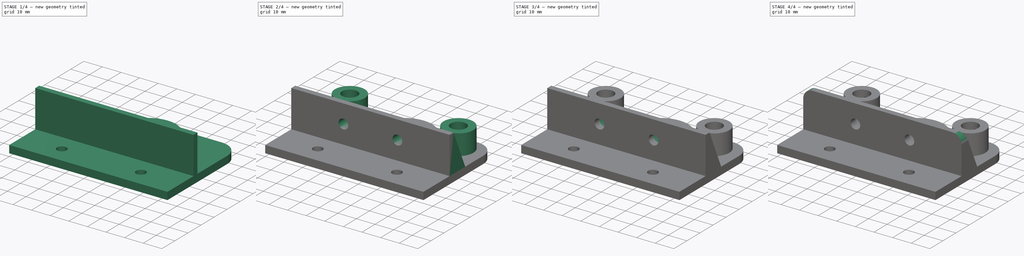
[diagram: build sequence overview — one tinted view per stage of 4, left to right]
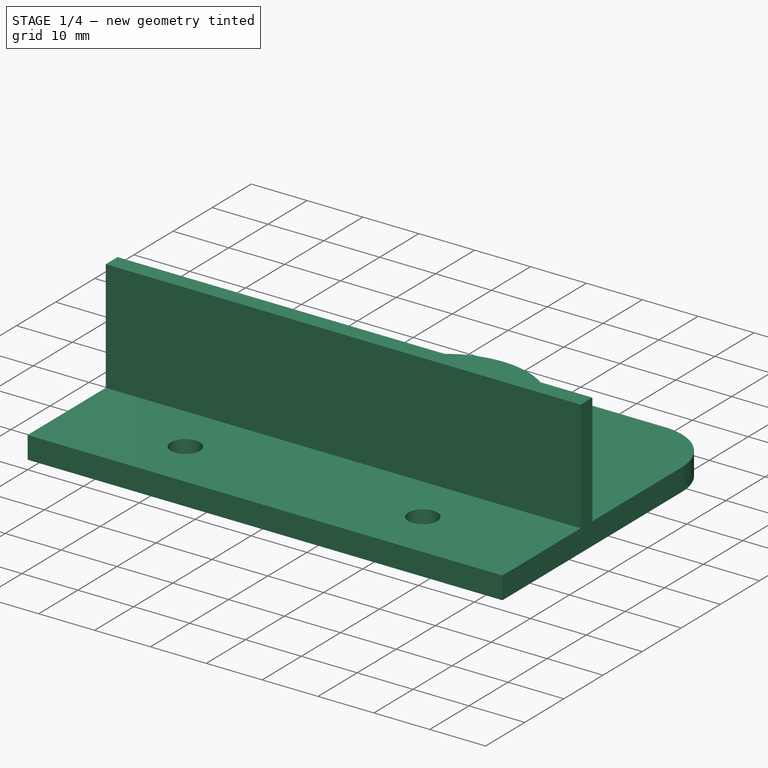
[diagram: stage 1 of 4 — iso view after this stage's code; geometry added in this stage tinted green]
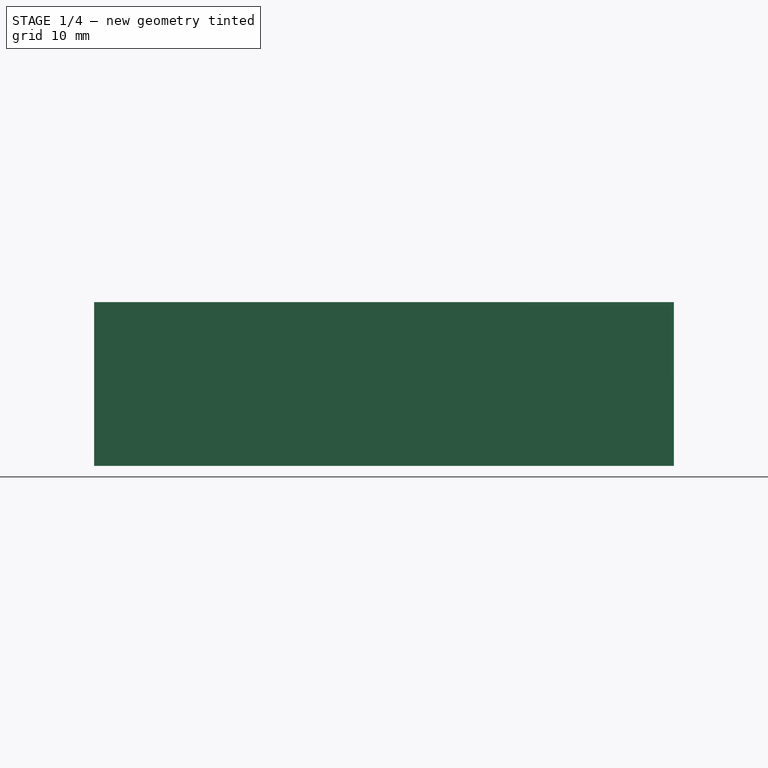
[diagram: stage 1 of 4 — front view after this stage's code; geometry added in this stage tinted green]
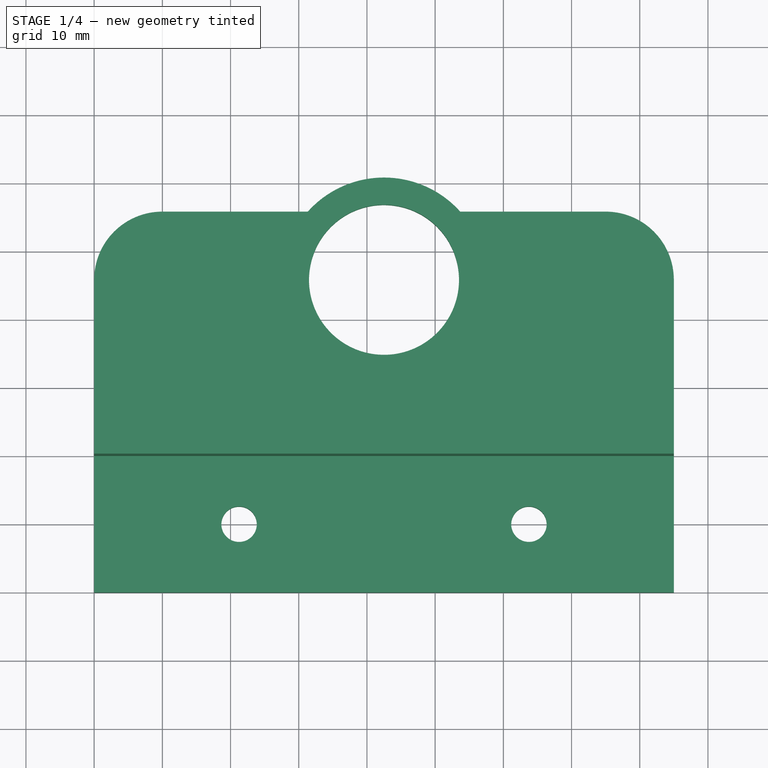
[diagram: stage 1 of 4 — top view after this stage's code; geometry added in this stage tinted green]
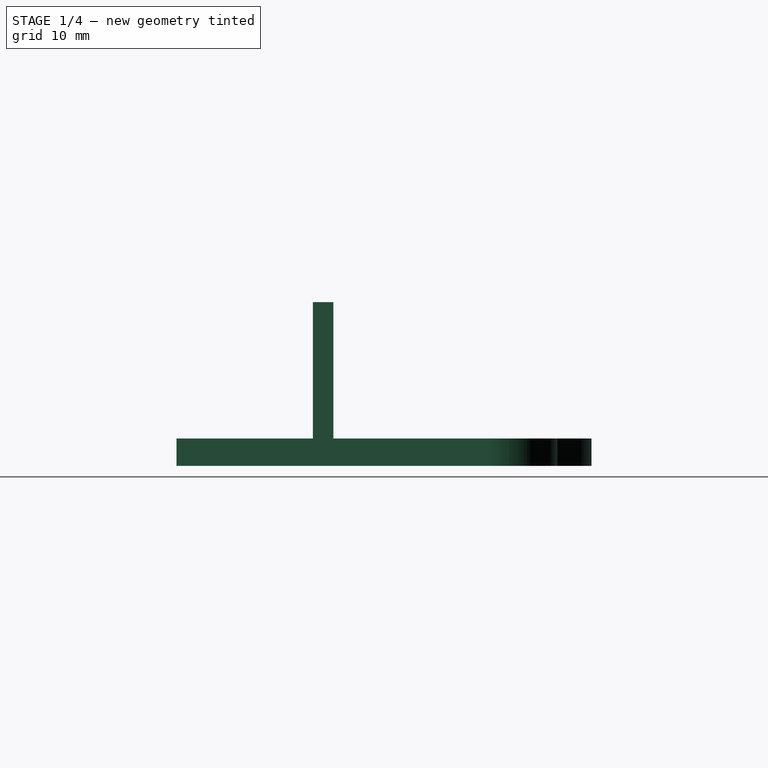
[diagram: stage 1 of 4 — right view after this stage's code; geometry added in this stage tinted green]
FCSTD DOCUMENT  (FreeCAD 1.0R39109 (Git))
Label: top
License: All rights reserved
LicenseURL: https://en.wikipedia.org/wiki/All_rights_reserved
objects: Sketcher::SketchObject×9, PartDesign::Pad×4, PartDesign::Hole×3, PartDesign::SubtractiveLoft×1, PartDesign::Chamfer×1, PartDesign::Pocket×1, PartDesign::Fillet×1, PartDesign::Body×1
note: 52 computed .brp shape members not serialized (recipe doc carries the construction recipe); baked Part::Feature solids carry a one-line shape summary decoded from their .brp

FEATURE [Sketcher::SketchObject] Sketch
  ArcFitTolerance = 1e-06
  AttachmentSupport = -> [XY_Plane]
  FullyConstrained = true
  MakeInternals = false
  MapMode = 5
  sketch-geometry (58):
    g0: LineSegment StartX=0 StartY=0 StartZ=0 EndX=85 EndY=0 EndZ=0
    g1: LineSegment StartX=85 StartY=0 StartZ=0 EndX=85 EndY=20 EndZ=0
    g2: LineSegment [constr] StartX=85 StartY=20 StartZ=0 EndX=0 EndY=20 EndZ=0
    g3: LineSegment StartX=0 StartY=20 StartZ=0 EndX=0 EndY=0 EndZ=0
    g4: LineSegment [constr] StartX=0 StartY=20 StartZ=0 EndX=85 EndY=20 EndZ=0
    g5: LineSegment [constr] StartX=85 StartY=20 StartZ=0 EndX=85 EndY=65 EndZ=0
    g6: LineSegment [constr] StartX=85 StartY=65 StartZ=0 EndX=0 EndY=65 EndZ=0
    g7: LineSegment [constr] StartX=0 StartY=65 StartZ=0 EndX=0 EndY=20 EndZ=0
    g8: LineSegment [constr] StartX=0 StartY=0 StartZ=0 EndX=21.25 EndY=0 EndZ=0
    g9: LineSegment [constr] StartX=21.25 StartY=0 StartZ=0 EndX=21.25 EndY=10 EndZ=0
    g10: LineSegment [constr] StartX=21.25 StartY=10 StartZ=0 EndX=0 EndY=10 EndZ=0
    g11: LineSegment [constr] StartX=0 StartY=10 StartZ=0 EndX=0 EndY=0 EndZ=0
    g12: LineSegment [constr] StartX=85 StartY=0 StartZ=0 EndX=85 EndY=10 EndZ=0
    g13: LineSegment [constr] StartX=85 StartY=10 StartZ=0 EndX=63.75 EndY=10 EndZ=0
    g14: LineSegment [constr] StartX=63.75 StartY=10 StartZ=0 EndX=63.75 EndY=0 EndZ=0
    g15: LineSegment [constr] StartX=63.75 StartY=0 StartZ=0 EndX=85 EndY=0 EndZ=0
    g16: Circle CenterX=21.25 CenterY=10 CenterZ=0 NormalX=0 NormalY=0 NormalZ=1 AngleXU=0 Radius=2.6
    g17: Circle CenterX=63.75 CenterY=10 CenterZ=0 NormalX=0 NormalY=0 NormalZ=1 AngleXU=0 Radius=2.6
    g18: LineSegment [constr] StartX=0 StartY=20 StartZ=0 EndX=85 EndY=20 EndZ=0
    g19: LineSegment StartX=85 StartY=20 StartZ=0 EndX=85 EndY=23 EndZ=0
    g20: LineSegment [constr] StartX=85 StartY=23 StartZ=0 EndX=0 EndY=23 EndZ=0
    g21: LineSegment StartX=0 StartY=23 StartZ=0 EndX=0 EndY=20 EndZ=0
    g22: LineSegment [constr] StartX=42.5 StartY=0 StartZ=0 EndX=42.5 EndY=65 EndZ=0
    g23: LineSegment [constr] StartX=0 StartY=20 StartZ=0 EndX=85 EndY=20 EndZ=0
    g24: LineSegment [constr] StartX=85 StartY=0 StartZ=0 EndX=85 EndY=20 EndZ=0
    g25: LineSegment [constr] StartX=85 StartY=20 StartZ=0 EndX=42.5 EndY=20 EndZ=0
    g26: LineSegment [constr] StartX=42.5 StartY=20 StartZ=0 EndX=42.5 EndY=0 EndZ=0
    g27: LineSegment [constr] StartX=42.5 StartY=0 StartZ=0 EndX=85 EndY=0 EndZ=0
    g28: LineSegment [constr] StartX=42.5 StartY=20 StartZ=0 EndX=71.65 EndY=20 EndZ=0
    g29: LineSegment [constr] StartX=71.65 StartY=20 StartZ=0 EndX=71.65 EndY=45.84 EndZ=0
    g30: LineSegment [constr] StartX=71.65 StartY=45.84 StartZ=0 EndX=42.5 EndY=45.84 EndZ=0
    g31: LineSegment [constr] StartX=42.5 StartY=45.84 StartZ=0 EndX=42.5 EndY=20 EndZ=0
    g32: LineSegment [constr] StartX=42.5 StartY=20 StartZ=0 EndX=42.5 EndY=45.84 EndZ=0
    g33: LineSegment [constr] StartX=42.5 StartY=45.84 StartZ=0 EndX=13.35 EndY=45.84 EndZ=0
    g34: LineSegment [constr] StartX=13.35 StartY=45.84 StartZ=0 EndX=13.35 EndY=20 EndZ=0
    g35: LineSegment [constr] StartX=13.35 StartY=20 StartZ=0 EndX=42.5 EndY=20 EndZ=0
    g36: Circle [constr] CenterX=13.35 CenterY=45.84 CenterZ=0 NormalX=0 NormalY=0 NormalZ=1 AngleXU=0 Radius=4.05
    g37: Circle [constr] CenterX=71.65 CenterY=45.84 CenterZ=0 NormalX=0 NormalY=0 NormalZ=1 AngleXU=0 Radius=4.05
    g38: Circle CenterX=42.5 CenterY=45.84 CenterZ=0 NormalX=0 NormalY=0 NormalZ=1 AngleXU=0 Radius=11
    g39: Circle [constr] CenterX=42.5 CenterY=45.84 CenterZ=0 NormalX=0 NormalY=0 NormalZ=1 AngleXU=0 Radius=15
    g40: LineSegment [constr] StartX=13.35 StartY=45.84 StartZ=0 EndX=13.35 EndY=55.84 EndZ=0
    g41: LineSegment [constr] StartX=13.35 StartY=55.84 StartZ=0 EndX=0 EndY=55.84 EndZ=0
    g42: LineSegment [constr] StartX=0 StartY=55.84 StartZ=0 EndX=0 EndY=45.84 EndZ=0
    g43: LineSegment [constr] StartX=0 StartY=45.84 StartZ=0 EndX=13.35 EndY=45.84 EndZ=0
    g44: LineSegment [constr] StartX=71.65 StartY=45.84 StartZ=0 EndX=85 EndY=45.84 EndZ=0
    g45: LineSegment [constr] StartX=85 StartY=45.84 StartZ=0 EndX=85 EndY=55.84 EndZ=0
    g46: LineSegment [constr] StartX=85 StartY=55.84 StartZ=0 EndX=71.65 EndY=55.84 EndZ=0
    g47: LineSegment [constr] StartX=71.65 StartY=55.84 StartZ=0 EndX=71.65 EndY=45.84 EndZ=0
    g48: LineSegment StartX=10 StartY=55.84 StartZ=0 EndX=31.3197 EndY=55.84 EndZ=0
    g49: LineSegment StartX=75 StartY=55.84 StartZ=0 EndX=53.6803 EndY=55.84 EndZ=0
    g50: LineSegment [constr] StartX=42.5 StartY=45.84 StartZ=0 EndX=42.5 EndY=60.84 EndZ=0
    g51: ArcOfCircle CenterX=42.5 CenterY=45.84 CenterZ=0 NormalX=0 NormalY=0 NormalZ=1 AngleXU=0 Radius=15 StartAngle=0.729728 EndAngle=2.41186
    g52: LineSegment StartX=0 StartY=23 StartZ=0 EndX=0 EndY=45.84 EndZ=0
    g53: LineSegment StartX=85 StartY=45.84 StartZ=0 EndX=85 EndY=23 EndZ=0
    g54: ArcOfCircle CenterX=75 CenterY=45.84 CenterZ=0 NormalX=0 NormalY=0 NormalZ=1 AngleXU=0 Radius=10 StartAngle=6.71248e-11 EndAngle=1.5708
    g55: GeomPoint [constr] X=85 Y=55.84 Z=0
    g56: ArcOfCircle CenterX=10 CenterY=45.84 CenterZ=0 NormalX=0 NormalY=0 NormalZ=1 AngleXU=0 Radius=10 StartAngle=1.5708 EndAngle=3.14159
    g57: GeomPoint [constr] X=0 Y=55.84 Z=0
  constraints (150):
    c: Coincident(g0,g1)
    c: Coincident(g1,g2)
    c: Coincident(g2,g3)
    c: Coincident(g3,g0)
    c: Horizontal(g0)
    c: Horizontal(g2)
    c: Vertical(g1)
    c: Vertical(g3)
    c: Distance(g1,g3) = 85
    c: Distance(g0,g2) = 20
    c: Coincident(g0,g-1)
    c: Coincident(g4,g5)
    c: Coincident(g5,g6)
    c: Coincident(g6,g7)
    c: Coincident(g7,g4)
    c: Horizontal(g4)
    c: Horizontal(g6)
    c: Vertical(g5)
    c: Vertical(g7)
    c: Distance(g5,g7) = 85
    c: Distance(g4,g6) = 45
    c: Coincident(g4,g2)
    c: Coincident(g8,g9)
    c: Coincident(g9,g10)
    c: Coincident(g10,g11)
    c: Coincident(g11,g8)
    c: Horizontal(g8)
    c: Horizontal(g10)
    c: Vertical(g9)
    c: Vertical(g11)
    c: Distance(g9,g11) = 21.25
    c: Distance(g8,g10) = 10
    c: Coincident(g8,g0)
    c: Coincident(g12,g13)
    c: Coincident(g13,g14)
    c: Coincident(g14,g15)
    c: Coincident(g15,g12)
    c: Vertical(g12)
    c: Vertical(g14)
    c: Horizontal(g13)
    c: Horizontal(g15)
    c: Distance(g12,g14) = 21.25
    c: Distance(g13,g15) = 10
    c: Coincident(g12,g0)
    c: Diameter(g16) = 5.2
    c: Coincident(g16,g9)
    c: Diameter(g17) = 5.2
    c: Coincident(g17,g13)
    c: Coincident(g18,g19)
    c: Coincident(g19,g20)
    c: Coincident(g20,g21)
    c: Coincident(g21,g18)
    c: Horizontal(g18)
    c: Horizontal(g20)
    c: Vertical(g19)
    c: Vertical(g21)
    c: Distance(g18,g20) = 3
    c: Coincident(g18,g2)
    c: PointOnObject(g19,g5)
    c: Symmetric(g0,g0,g22)
    c: Symmetric(g6,g6,g22)
    c: Coincident(g23,g2)
    c: Coincident(g23,g1)
    c: Coincident(g24,g25)
    c: Coincident(g25,g26)
    c: Coincident(g26,g27)
    c: Coincident(g27,g24)
    c: Vertical(g24)
    c: Vertical(g26)
    c: Horizontal(g25)
    c: Horizontal(g27)
    c: Distance(g25,g27) = 20
    c: Coincident(g24,g0)
    c: PointOnObject(g25,g22)
    c: Coincident(g28,g29)
    c: Coincident(g29,g30)
    c: Coincident(g30,g31)
    c: Coincident(g31,g28)
    c: Horizontal(g28)
    c: Horizontal(g30)
    c: Vertical(g29)
    c: Vertical(g31)
    c: Distance(g29,g31) = 29.15
    c: Distance(g28,g30) = 25.84
    c: Coincident(g28,g25)
    c: Coincident(g32,g33)
    c: Coincident(g33,g34)
    c: Coincident(g34,g35)
    c: Coincident(g35,g32)
    c: Vertical(g32)
    c: Vertical(g34)
    c: Horizontal(g33)
    c: Horizontal(g35)
    c: Distance(g32,g34) = 29.15
    c: Distance(g33,g35) = 25.84
    c: Coincident(g32,g25)
    c: Diameter(g36) = 8.1
    c: Coincident(g36,g33)
    c: Diameter(g37) = 8.1
    c: Coincident(g37,g29)
    c: Diameter(g38) = 22
    c: Coincident(g38,g30)
    c: Diameter(g39) = 30
    c: Coincident(g39,g30)
    c: Coincident(g40,g41)
    c: Coincident(g41,g42)
    c: Coincident(g42,g43)
    c: Coincident(g43,g40)
    c: Vertical(g40)
    c: Vertical(g42)
    c: Horizontal(g41)
    c: Horizontal(g43)
    c: Distance(g41,g43) = 10
    c: Coincident(g40,g33)
    c: PointOnObject(g41,g7)
    c: Coincident(g44,g45)
    c: Coincident(g45,g46)
    c: Coincident(g46,g47)
    c: Coincident(g47,g44)
    c: Horizontal(g44)
    c: Horizontal(g46)
    c: Vertical(g45)
    c: Vertical(g47)
    c: Distance(g44,g46) = 10
    c: Coincident(g44,g29)
    c: PointOnObject(g45,g5)
    c: Coincident(g57,g41)
    c: PointOnObject(g48,g39)
    c: Horizontal(g48)
    c: Coincident(g55,g45)
    c: PointOnObject(g49,g39)
    c: Horizontal(g49)
    c: Distance(g50) = 15
    c: Coincident(g50,g30)
    c: PointOnObject(g50,g22)
    c: Coincident(g51,g48)
    c: Coincident(g51,g49)
    c: PointOnObject(g50,g51)
    c: Coincident(g52,g20)
    c: Coincident(g53,g19)
    c: PointOnObject(g55,g49)
    c: PointOnObject(g55,g53)
    c: Tangent(g49,g54) = -1.5708
    c: Tangent(g53,g54) = 1.5708
    c: DistanceY(g54,g49) = 10
    c: PointOnObject(g57,g48)
    c: PointOnObject(g57,g52)
    c: Tangent(g48,g56) = 1.5708
    c: Tangent(g52,g56) = 1.5708
    c: DistanceY(g56,g48) = 10
FEATURE [PartDesign::Pad] Pad
  Direction = (0,0,1)
  Length = 4
  Length2 = 10
  Profile = -> Sketch
  ReferenceAxis = -> Sketch [N_Axis]
  Refine = true
  Reversed = true
  Suppressed = false
  Type = 0
FEATURE [Sketcher::SketchObject] Sketch001
  ArcFitTolerance = 1e-06
  AttachmentSupport = -> [XY_Plane]
  FullyConstrained = true
  MakeInternals = false
  MapMode = 5
  sketch-geometry (8):
    g0: LineSegment [constr] StartX=0 StartY=0 StartZ=0 EndX=85 EndY=0 EndZ=0
    g1: LineSegment [constr] StartX=85 StartY=0 StartZ=0 EndX=85 EndY=20 EndZ=0
    g2: LineSegment [constr] StartX=85 StartY=20 StartZ=0 EndX=0 EndY=20 EndZ=0
    g3: LineSegment [constr] StartX=0 StartY=20 StartZ=0 EndX=0 EndY=0 EndZ=0
    g4: LineSegment StartX=0 StartY=20 StartZ=0 EndX=85 EndY=20 EndZ=0
    g5: LineSegment StartX=85 StartY=20 StartZ=0 EndX=85 EndY=23 EndZ=0
    g6: LineSegment StartX=85 StartY=23 StartZ=0 EndX=0 EndY=23 EndZ=0
    g7: LineSegment StartX=0 StartY=23 StartZ=0 EndX=0 EndY=20 EndZ=0
  constraints (22):
    c: Coincident(g0,g1)
    c: Coincident(g1,g2)
    c: Coincident(g2,g3)
    c: Coincident(g3,g0)
    c: Horizontal(g0)
    c: Horizontal(g2)
    c: Vertical(g1)
    c: Vertical(g3)
    c: Distance(g1,g3) = 85
    c: Distance(g0,g2) = 20
    c: Coincident(g0,g-1)
    c: Coincident(g4,g5)
    c: Coincident(g5,g6)
    c: Coincident(g6,g7)
    c: Coincident(g7,g4)
    c: Horizontal(g4)
    c: Horizontal(g6)
    c: Vertical(g5)
    c: Vertical(g7)
    c: Distance(g5,g7) = 85
    c: Distance(g4,g6) = 3
    c: Coincident(g4,g2)
FEATURE [PartDesign::Pad] Pad001
  BaseFeature = -> Pad
  Direction = (0,0,1)
  Length = 20
  Length2 = 10
  Profile = -> Sketch001
  ReferenceAxis = -> Sketch001 [N_Axis]
  Refine = true
  Suppressed = false
  Type = 0
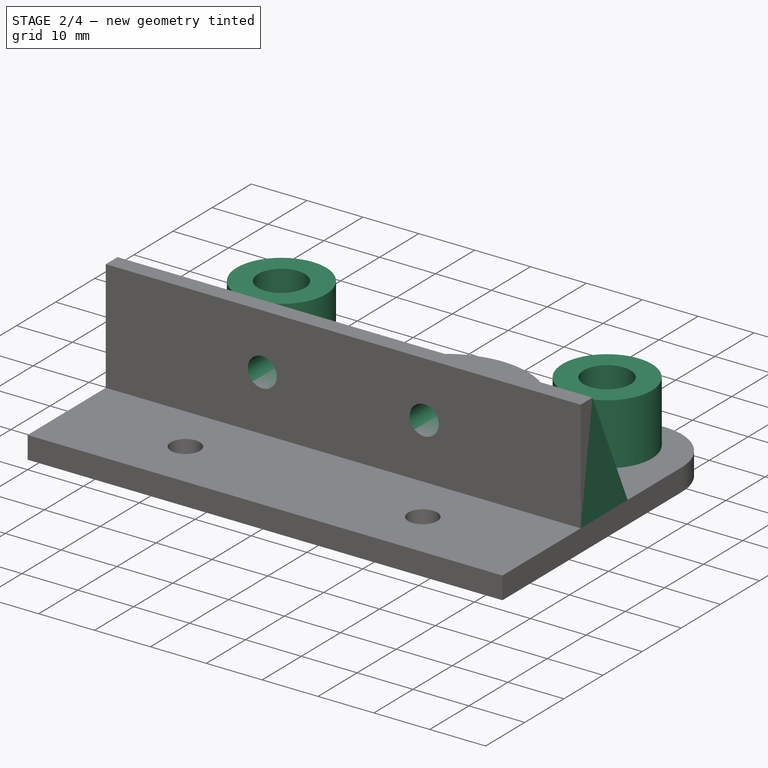
[diagram: stage 2 of 4 — iso view after this stage's code; geometry added in this stage tinted green]
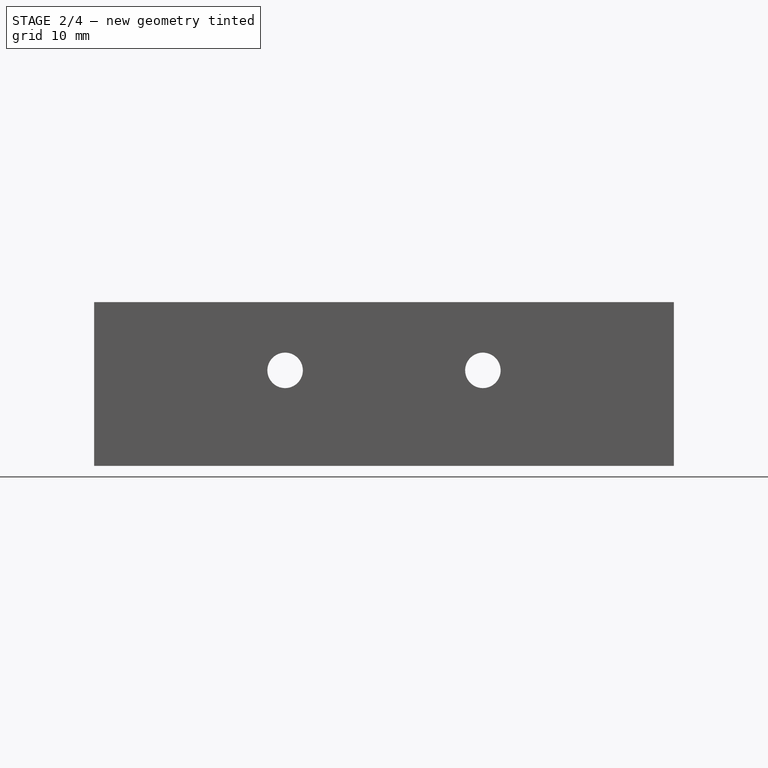
[diagram: stage 2 of 4 — front view after this stage's code; geometry added in this stage tinted green]
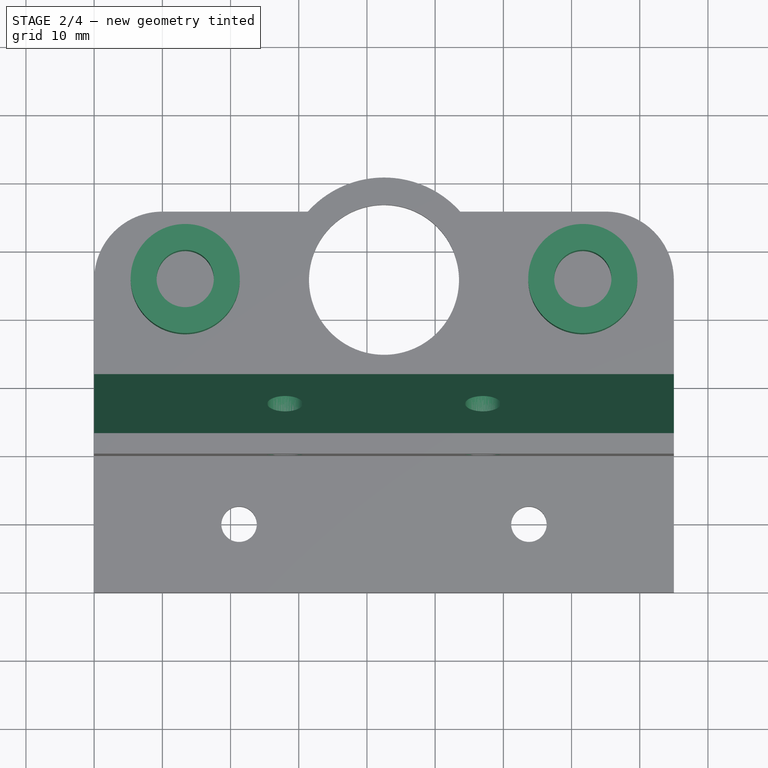
[diagram: stage 2 of 4 — top view after this stage's code; geometry added in this stage tinted green]
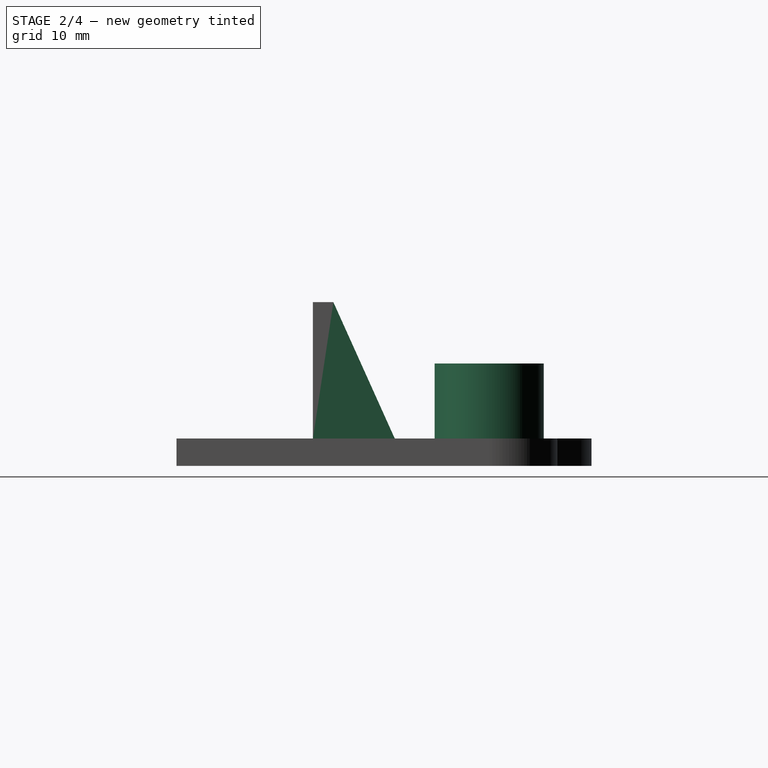
[diagram: stage 2 of 4 — right view after this stage's code; geometry added in this stage tinted green]
FEATURE [Sketcher::SketchObject] Sketch002
  ArcFitTolerance = 1e-06
  AttachmentSupport = -> [XY_Plane]
  FullyConstrained = true
  MakeInternals = false
  MapMode = 5
  sketch-geometry (22):
    g0: LineSegment [constr] StartX=0 StartY=0 StartZ=0 EndX=85 EndY=0 EndZ=0
    g1: LineSegment [constr] StartX=85 StartY=0 StartZ=0 EndX=85 EndY=20 EndZ=0
    g2: LineSegment [constr] StartX=85 StartY=20 StartZ=0 EndX=0 EndY=20 EndZ=0
    g3: LineSegment [constr] StartX=0 StartY=20 StartZ=0 EndX=0 EndY=0 EndZ=0
    g4: LineSegment [constr] StartX=0 StartY=20 StartZ=0 EndX=85 EndY=20 EndZ=0
    g5: LineSegment [constr] StartX=85 StartY=20 StartZ=0 EndX=85 EndY=23 EndZ=0
    g6: LineSegment [constr] StartX=85 StartY=23 StartZ=0 EndX=0 EndY=23 EndZ=0
    g7: LineSegment [constr] StartX=0 StartY=23 StartZ=0 EndX=0 EndY=20 EndZ=0
    g8: LineSegment [constr] StartX=0 StartY=23 StartZ=0 EndX=13.35 EndY=23 EndZ=0
    g9: LineSegment [constr] StartX=13.35 StartY=23 StartZ=0 EndX=13.35 EndY=45.84 EndZ=0
    g10: LineSegment [constr] StartX=13.35 StartY=45.84 StartZ=0 EndX=0 EndY=45.84 EndZ=0
    g11: LineSegment [constr] StartX=0 StartY=45.84 StartZ=0 EndX=0 EndY=23 EndZ=0
    g12: LineSegment [constr] StartX=85 StartY=23 StartZ=0 EndX=85 EndY=45.84 EndZ=0
    g13: LineSegment [constr] StartX=71.65 StartY=23 StartZ=0 EndX=85 EndY=23 EndZ=0
    g14: Circle CenterX=13.35 CenterY=45.84 CenterZ=0 NormalX=0 NormalY=0 NormalZ=1 AngleXU=0 Radius=4.2
    g15: Circle CenterX=13.35 CenterY=45.84 CenterZ=0 NormalX=0 NormalY=0 NormalZ=1 AngleXU=0 Radius=8
    g16: LineSegment [constr] StartX=85 StartY=23 StartZ=0 EndX=85 EndY=45.84 EndZ=0
    g17: LineSegment [constr] StartX=85 StartY=45.84 StartZ=0 EndX=71.65 EndY=45.84 EndZ=0
    g18: LineSegment [constr] StartX=71.65 StartY=45.84 StartZ=0 EndX=71.65 EndY=23 EndZ=0
    g19: LineSegment [constr] StartX=71.65 StartY=23 StartZ=0 EndX=85 EndY=23 EndZ=0
    g20: Circle CenterX=71.65 CenterY=45.84 CenterZ=0 NormalX=0 NormalY=0 NormalZ=1 AngleXU=0 Radius=4.2
    g21: Circle CenterX=71.65 CenterY=45.84 CenterZ=0 NormalX=0 NormalY=0 NormalZ=1 AngleXU=0 Radius=8
  constraints (58):
    c: Coincident(g0,g1)
    c: Coincident(g1,g2)
    c: Coincident(g2,g3)
    c: Coincident(g3,g0)
    c: Horizontal(g0)
    c: Horizontal(g2)
    c: Vertical(g1)
    c: Vertical(g3)
    c: Distance(g1,g3) = 85
    c: Distance(g0,g2) = 20
    c: Coincident(g0,g-1)
    c: Coincident(g4,g5)
    c: Coincident(g5,g6)
    c: Coincident(g6,g7)
    c: Coincident(g7,g4)
    c: Horizontal(g4)
    c: Horizontal(g6)
    c: Vertical(g5)
    c: Vertical(g7)
    c: Distance(g5,g7) = 85
    c: Distance(g4,g6) = 3
    c: Coincident(g4,g2)
    c: Coincident(g8,g9)
    c: Coincident(g9,g10)
    c: Coincident(g10,g11)
    c: Coincident(g11,g8)
    c: Horizontal(g8)
    c: Horizontal(g10)
    c: Vertical(g9)
    c: Vertical(g11)
    c: Distance(g9,g11) = 13.35
    c: Distance(g8,g10) = 22.84
    c: Coincident(g8,g6)
    c: Coincident(g13,g12)
    c: Vertical(g12)
    c: Horizontal(g13)
    c: Distance(g12,g13) = 13.35
    c: Distance(g12,g13) = 22.84
    c: Coincident(g12,g5)
    c: Diameter(g14) = 8.4
    c: Coincident(g14,g9)
    c: Diameter(g15) = 16
    c: Coincident(g15,g9)
    c: Coincident(g16,g17)
    c: Coincident(g17,g18)
    c: Coincident(g18,g19)
    c: Coincident(g19,g16)
    c: Vertical(g16)
    c: Vertical(g18)
    c: Horizontal(g17)
    c: Horizontal(g19)
    c: Distance(g16,g18) = 13.35
    c: Distance(g17,g19) = 22.84
    c: Coincident(g16,g5)
    c: Diameter(g20) = 8.4
    c: Coincident(g20,g17)
    c: Diameter(g21) = 16
    c: Coincident(g21,g17)
FEATURE [PartDesign::Pad] Pad002
  BaseFeature = -> Pad001
  Direction = (0,0,1)
  Length = 11
  Length2 = 10
  Profile = -> Sketch002
  ReferenceAxis = -> Sketch002 [N_Axis]
  Refine = true
  Suppressed = false
  Type = 0
FEATURE [Sketcher::SketchObject] Sketch003
  ArcFitTolerance = 1e-06
  AttachmentSupport = -> [XZ_Plane]
  FullyConstrained = true
  MakeInternals = false
  MapMode = 5
  Placement = pos=(0,0,0) rot=(1,0,0;1.5708rad)
  sketch-geometry (14):
    g0: LineSegment [constr] StartX=0 StartY=0 StartZ=0 EndX=85 EndY=0 EndZ=0
    g1: LineSegment [constr] StartX=85 StartY=0 StartZ=0 EndX=85 EndY=20 EndZ=0
    g2: LineSegment [constr] StartX=85 StartY=20 StartZ=0 EndX=0 EndY=20 EndZ=0
    g3: LineSegment [constr] StartX=0 StartY=20 StartZ=0 EndX=0 EndY=0 EndZ=0
    g4: LineSegment [constr] StartX=0 StartY=0 StartZ=0 EndX=21.25 EndY=0 EndZ=0
    g5: LineSegment [constr] StartX=21.25 StartY=0 StartZ=0 EndX=21.25 EndY=10 EndZ=0
    g6: LineSegment [constr] StartX=21.25 StartY=10 StartZ=0 EndX=0 EndY=10 EndZ=0
    g7: LineSegment [constr] StartX=0 StartY=10 StartZ=0 EndX=0 EndY=0 EndZ=0
    g8: LineSegment [constr] StartX=85 StartY=0 StartZ=0 EndX=85 EndY=10 EndZ=0
    g9: LineSegment [constr] StartX=85 StartY=10 StartZ=0 EndX=63.75 EndY=10 EndZ=0
    g10: LineSegment [constr] StartX=63.75 StartY=10 StartZ=0 EndX=63.75 EndY=0 EndZ=0
    g11: LineSegment [constr] StartX=63.75 StartY=0 StartZ=0 EndX=85 EndY=0 EndZ=0
    g12: Circle CenterX=21.25 CenterY=10 CenterZ=0 NormalX=0 NormalY=0 NormalZ=1 AngleXU=0 Radius=2.6
    g13: Circle CenterX=63.75 CenterY=10 CenterZ=0 NormalX=0 NormalY=0 NormalZ=1 AngleXU=0 Radius=2.6
  constraints (37):
    c: Coincident(g0,g1)
    c: Coincident(g1,g2)
    c: Coincident(g2,g3)
    c: Coincident(g3,g0)
    c: Horizontal(g0)
    c: Horizontal(g2)
    c: Vertical(g1)
    c: Vertical(g3)
    c: Distance(g1,g3) = 85
    c: Distance(g0,g2) = 20
    c: Coincident(g0,g-1)
    c: Coincident(g4,g5)
    c: Coincident(g5,g6)
    c: Coincident(g6,g7)
    c: Coincident(g7,g4)
    c: Horizontal(g4)
    c: Horizontal(g6)
    c: Vertical(g5)
    c: Vertical(g7)
    c: Distance(g5,g7) = 21.25
    c: Distance(g4,g6) = 10
    c: Coincident(g4,g0)
    c: Coincident(g8,g9)
    c: Coincident(g9,g10)
    c: Coincident(g10,g11)
    c: Coincident(g11,g8)
    c: Vertical(g8)
    c: Vertical(g10)
    c: Horizontal(g9)
    c: Horizontal(g11)
    c: Distance(g8,g10) = 21.25
    c: Distance(g9,g11) = 10
    c: Coincident(g8,g0)
    c: Diameter(g12) = 5.2
    c: Coincident(g12,g5)
    c: Diameter(g13) = 5.2
    c: Coincident(g13,g9)
FEATURE [PartDesign::SubtractiveLoft] SubtractiveLoft
  BaseFeature = -> Pad002
  Closed = false
  Profile = -> Sketch003
  Refine = true
  Ruled = false
  Suppressed = false
FEATURE [PartDesign::Chamfer] Chamfer
  Angle = 45
  Base = -> Pad002 [Edge2]
  BaseFeature = -> Pad002
  ChamferType = 1
  FlipDirection = false
  Refine = true
  Size = 9
  Size2 = 19.99
  SupportTransform = false
  Suppressed = false
  UseAllEdges = false
FEATURE [Sketcher::SketchObject] Sketch004
  ArcFitTolerance = 1e-06
  AttachmentSupport = -> [Chamfer]
  FullyConstrained = true
  MakeInternals = false
  MapMode = 5
  Placement = pos=(0,20,0) rot=(1,0,0;1.5708rad)
  sketch-geometry (16):
    g0: LineSegment [constr] StartX=0 StartY=0 StartZ=0 EndX=85 EndY=0 EndZ=0
    g1: LineSegment [constr] StartX=85 StartY=0 StartZ=0 EndX=85 EndY=20 EndZ=0
    g2: LineSegment [constr] StartX=85 StartY=20 StartZ=0 EndX=0 EndY=20 EndZ=0
    g3: LineSegment [constr] StartX=0 StartY=20 StartZ=0 EndX=0 EndY=0 EndZ=0
    g4: LineSegment [constr] StartX=0 StartY=0 StartZ=0 EndX=28 EndY=0 EndZ=0
    g5: LineSegment [constr] StartX=28 StartY=0 StartZ=0 EndX=28 EndY=10 EndZ=0
    g6: LineSegment [constr] StartX=28 StartY=10 StartZ=0 EndX=0 EndY=10 EndZ=0
    g7: LineSegment [constr] StartX=0 StartY=10 StartZ=0 EndX=0 EndY=0 EndZ=0
    g8: LineSegment [constr] StartX=85 StartY=20 StartZ=0 EndX=57 EndY=20 EndZ=0
    g9: LineSegment [constr] StartX=57 StartY=20 StartZ=0 EndX=57 EndY=10 EndZ=0
    g10: LineSegment [constr] StartX=57 StartY=10 StartZ=0 EndX=85 EndY=10 EndZ=0
    g11: LineSegment [constr] StartX=85 StartY=10 StartZ=0 EndX=85 EndY=20 EndZ=0
    g12: GeomPoint [constr] X=28 Y=10 Z=0
    g13: GeomPoint [constr] X=57 Y=10 Z=0
    g14: Circle CenterX=28 CenterY=10 CenterZ=0 NormalX=0 NormalY=0 NormalZ=1 AngleXU=0 Radius=2.6
    g15: Circle CenterX=57 CenterY=10 CenterZ=0 NormalX=0 NormalY=0 NormalZ=1 AngleXU=0 Radius=2.6
  constraints (39):
    c: Coincident(g0,g1)
    c: Coincident(g1,g2)
    c: Coincident(g2,g3)
    c: Coincident(g3,g0)
    c: Horizontal(g0)
    c: Horizontal(g2)
    c: Vertical(g1)
    c: Vertical(g3)
    c: Distance(g1,g3) = 85
    c: Distance(g0,g2) = 20
    c: Coincident(g0,g-1)
    c: Coincident(g4,g5)
    c: Coincident(g5,g6)
    c: Coincident(g6,g7)
    c: Coincident(g7,g4)
    c: Horizontal(g4)
    c: Horizontal(g6)
    c: Vertical(g5)
    c: Vertical(g7)
    c: Distance(g5,g7) = 28
    c: Distance(g4,g6) = 10
    c: Coincident(g4,g0)
    c: Coincident(g8,g9)
    c: Coincident(g9,g10)
    c: Coincident(g10,g11)
    c: Coincident(g11,g8)
    c: Horizontal(g8)
    c: Horizontal(g10)
    c: Vertical(g9)
    c: Vertical(g11)
    c: Distance(g9,g11) = 28
    c: Distance(g8,g10) = 10
    c: Coincident(g8,g1)
    c: Coincident(g12,g5)
    c: Coincident(g13,g9)
    c: Diameter(g14) = 5.2
    c: Coincident(g14,g5)
    c: Diameter(g15) = 5.2
    c: Coincident(g15,g9)
FEATURE [PartDesign::Hole] Hole
  BaseFeature = -> Chamfer
  CustomThreadClearance = 0
  Depth = 10
  DepthType = 0
  Diameter = 5.2
  DrillForDepth = false
  DrillPoint = 1
  DrillPointAngle = 118
  HoleCutCountersinkAngle = 90
  HoleCutCustomValues = false
  HoleCutDepth = 0
  HoleCutDiameter = 6.1
  HoleCutType = 0
  ModelThread = false
  Profile = -> Sketch004
  Refine = true
  Suppressed = false
  Tapered = false
  TaperedAngle = 90
  ThreadClass = 0
  ThreadDepth = 10
  ThreadDepthType = 0
  ThreadDirection = 0
  ThreadFit = 0
  ThreadSize = 0
  ThreadType = 0
  Threaded = false
  UseCustomThreadClearance = false
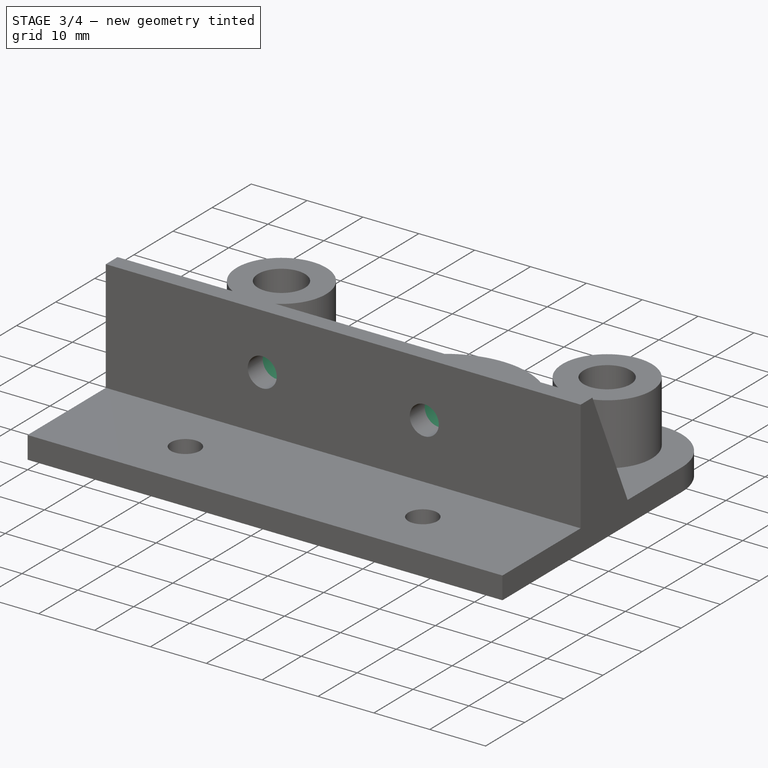
[diagram: stage 3 of 4 — iso view after this stage's code; geometry added in this stage tinted green]
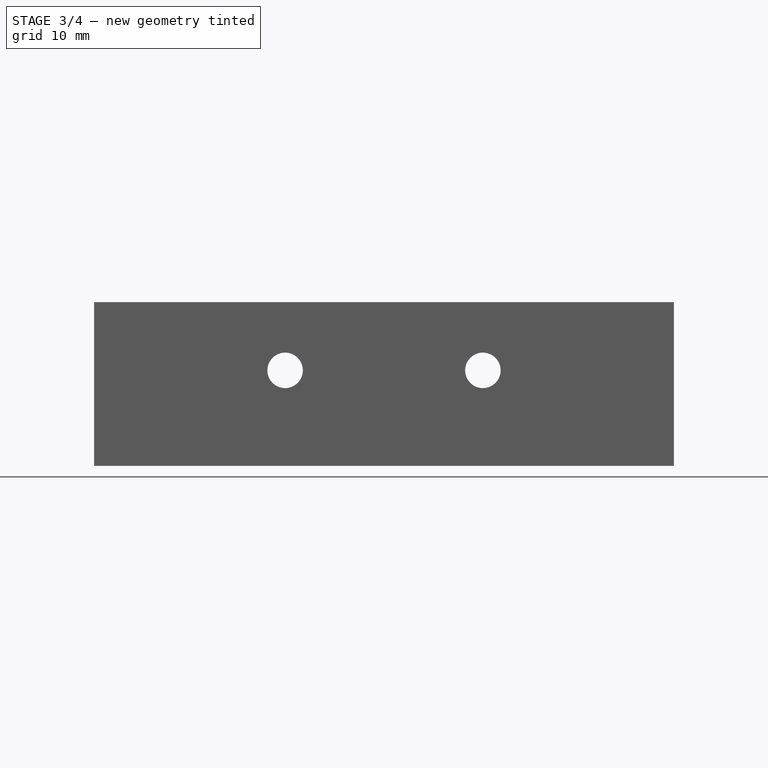
[diagram: stage 3 of 4 — front view after this stage's code; geometry added in this stage tinted green]
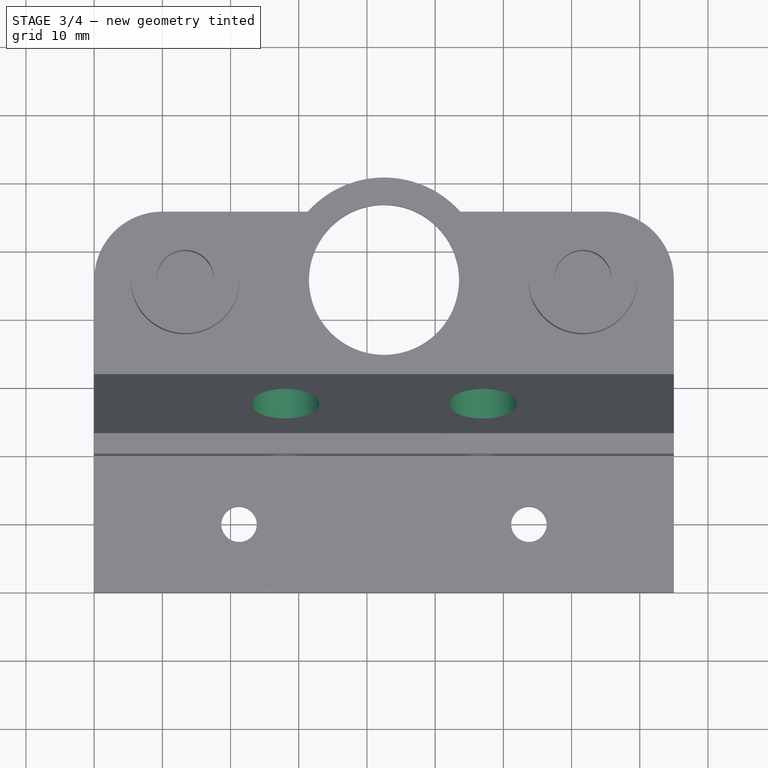
[diagram: stage 3 of 4 — top view after this stage's code; geometry added in this stage tinted green]
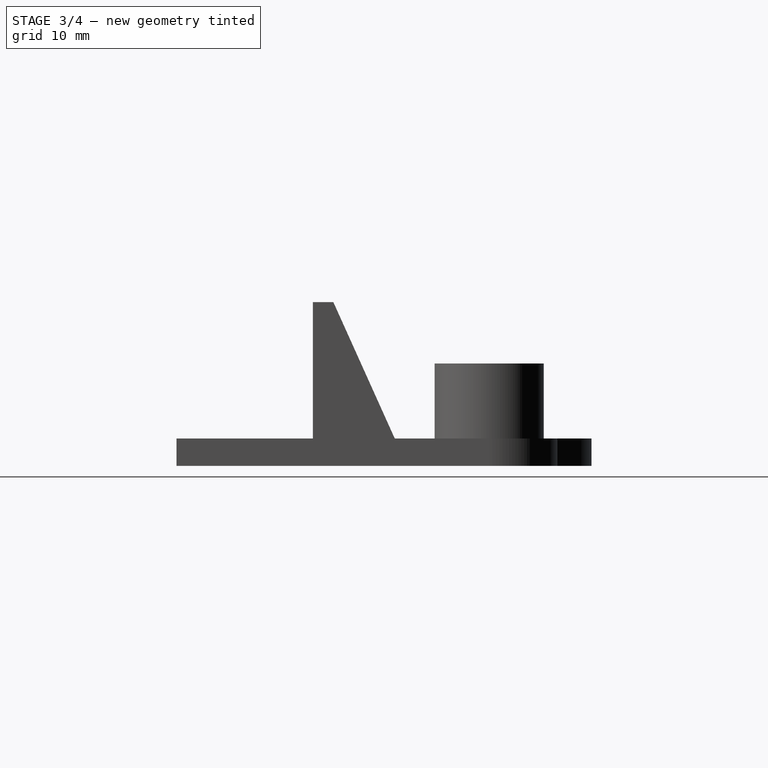
[diagram: stage 3 of 4 — right view after this stage's code; geometry added in this stage tinted green]
FEATURE [Sketcher::SketchObject] Sketch005
  ArcFitTolerance = 1e-06
  AttachmentSupport = -> [Hole]
  FullyConstrained = true
  MakeInternals = false
  MapMode = 5
  Placement = pos=(0,26.6067,11.979) rot=(0,0.542893,0.839802;3.14159rad)
FEATURE [Sketcher::SketchObject] Sketch006
  ArcFitTolerance = 1e-06
  AttachmentSupport = -> [XZ_Plane]
  FullyConstrained = true
  MakeInternals = false
  MapMode = 5
  Placement = pos=(0,0,0) rot=(1,0,0;1.5708rad)
FEATURE [PartDesign::Pocket] Pocket
  BaseFeature = -> Hole
  Direction = (0,0,-1)
  Length = 5
  Length2 = 5
  Profile = -> Sketch002
  ReferenceAxis = -> Sketch002 [N_Axis]
  Refine = true
  Reversed = true
  Suppressed = false
  Type = 0
FEATURE [Sketcher::SketchObject] Sketch007
  ArcFitTolerance = 1e-06
  AttachmentSupport = -> [Pocket]
  FullyConstrained = true
  MakeInternals = false
  MapMode = 5
  Placement = pos=(0,55.84,0) rot=(0,0.707107,0.707107;3.14159rad)
  sketch-geometry (14):
    g0: LineSegment [constr] StartX=0 StartY=0 StartZ=0 EndX=0 EndY=20 EndZ=0
    g1: LineSegment [constr] StartX=0 StartY=20 StartZ=0 EndX=-85 EndY=20 EndZ=0
    g2: LineSegment [constr] StartX=-85 StartY=20 StartZ=0 EndX=-85 EndY=0 EndZ=0
    g3: LineSegment [constr] StartX=-85 StartY=0 StartZ=0 EndX=0 EndY=0 EndZ=0
    g4: LineSegment [constr] StartX=0 StartY=0 StartZ=0 EndX=0 EndY=10 EndZ=0
    g5: LineSegment [constr] StartX=0 StartY=10 StartZ=0 EndX=-28 EndY=10 EndZ=0
    g6: LineSegment [constr] StartX=-28 StartY=10 StartZ=0 EndX=-28 EndY=0 EndZ=0
    g7: LineSegment [constr] StartX=-28 StartY=0 StartZ=0 EndX=0 EndY=0 EndZ=0
    g8: LineSegment [constr] StartX=-85 StartY=20 StartZ=0 EndX=-85 EndY=10 EndZ=0
    g9: LineSegment [constr] StartX=-85 StartY=10 StartZ=0 EndX=-57 EndY=10 EndZ=0
    g10: LineSegment [constr] StartX=-57 StartY=10 StartZ=0 EndX=-57 EndY=20 EndZ=0
    g11: LineSegment [constr] StartX=-57 StartY=20 StartZ=0 EndX=-85 EndY=20 EndZ=0
    g12: Circle CenterX=-57 CenterY=10 CenterZ=0 NormalX=0 NormalY=0 NormalZ=1 AngleXU=0 Radius=2.5
    g13: Circle CenterX=-28 CenterY=10 CenterZ=0 NormalX=0 NormalY=0 NormalZ=1 AngleXU=0 Radius=2.5
  constraints (37):
    c: Coincident(g0,g1)
    c: Coincident(g1,g2)
    c: Coincident(g2,g3)
    c: Coincident(g3,g0)
    c: Vertical(g0)
    c: Vertical(g2)
    c: Horizontal(g1)
    c: Horizontal(g3)
    c: Distance(g0,g2) = 85
    c: Distance(g1,g3) = 20
    c: Coincident(g0,g-1)
    c: Coincident(g4,g5)
    c: Coincident(g5,g6)
    c: Coincident(g6,g7)
    c: Coincident(g7,g4)
    c: Vertical(g4)
    c: Vertical(g6)
    c: Horizontal(g5)
    c: Horizontal(g7)
    c: Distance(g4,g6) = 28
    c: Distance(g5,g7) = 10
    c: Coincident(g4,g0)
    c: Coincident(g8,g9)
    c: Coincident(g9,g10)
    c: Coincident(g10,g11)
    c: Coincident(g11,g8)
    c: Vertical(g8)
    c: Vertical(g10)
    c: Horizontal(g9)
    c: Horizontal(g11)
    c: Distance(g8,g10) = 28
    c: Distance(g9,g11) = 10
    c: Coincident(g8,g1)
    c: Diameter(g12) = 5
    c: Coincident(g12,g9)
    c: Diameter(g13) = 5
    c: Coincident(g13,g5)
FEATURE [PartDesign::Hole] Hole001
  BaseFeature = -> Pocket
  CustomThreadClearance = 0
  Depth = 32
  DepthType = 0
  Diameter = 10
  DrillForDepth = false
  DrillPoint = 0
  DrillPointAngle = 118
  HoleCutCountersinkAngle = 90
  HoleCutCustomValues = false
  HoleCutDepth = 0
  HoleCutDiameter = 16
  HoleCutType = 0
  ModelThread = false
  Profile = -> Sketch007
  Refine = true
  Suppressed = false
  Tapered = false
  TaperedAngle = 90
  ThreadClass = 0
  ThreadDepth = 32
  ThreadDepthType = 0
  ThreadDirection = 0
  ThreadFit = 0
  ThreadSize = 0
  ThreadType = 0
  Threaded = false
  UseCustomThreadClearance = false
FEATURE [PartDesign::Pad] Pad003
  BaseFeature = -> Hole001
  Direction = (0,0,1)
  Length = 11
  Length2 = 10
  Profile = -> Sketch002
  ReferenceAxis = -> Sketch002 [N_Axis]
  Refine = true
  Suppressed = false
  Type = 0
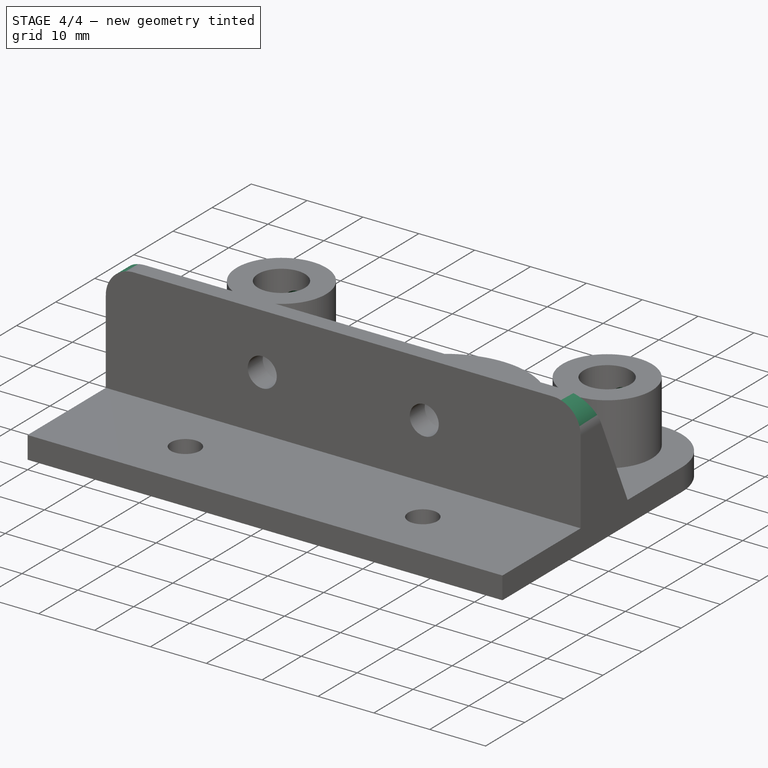
[diagram: stage 4 of 4 — iso view after this stage's code; geometry added in this stage tinted green]
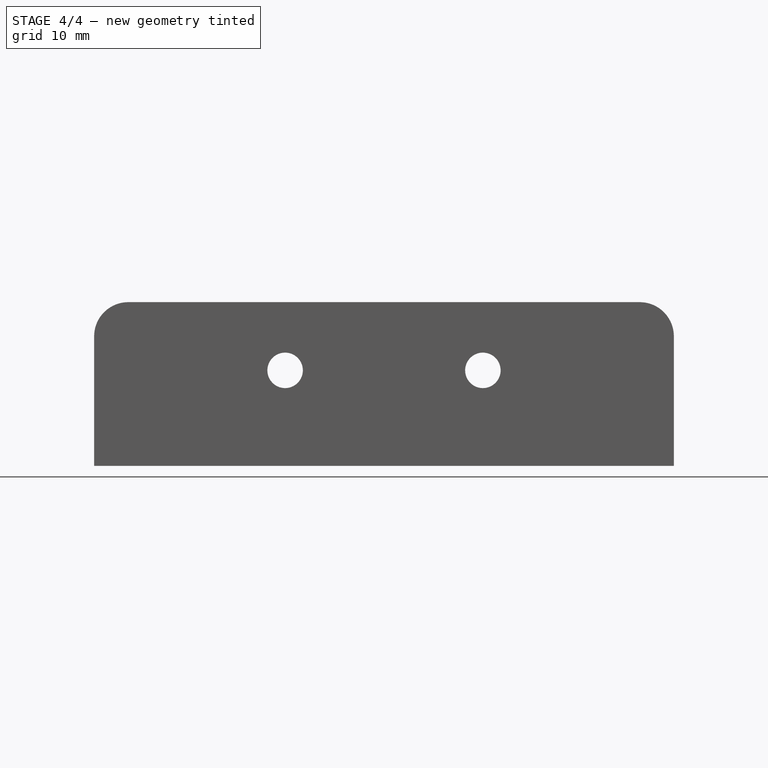
[diagram: stage 4 of 4 — front view after this stage's code; geometry added in this stage tinted green]
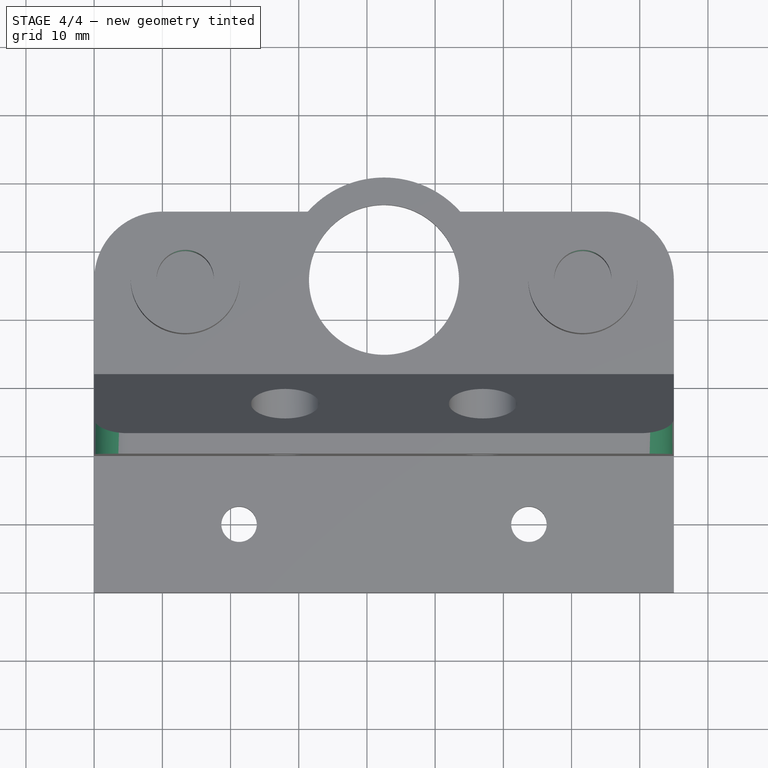
[diagram: stage 4 of 4 — top view after this stage's code; geometry added in this stage tinted green]
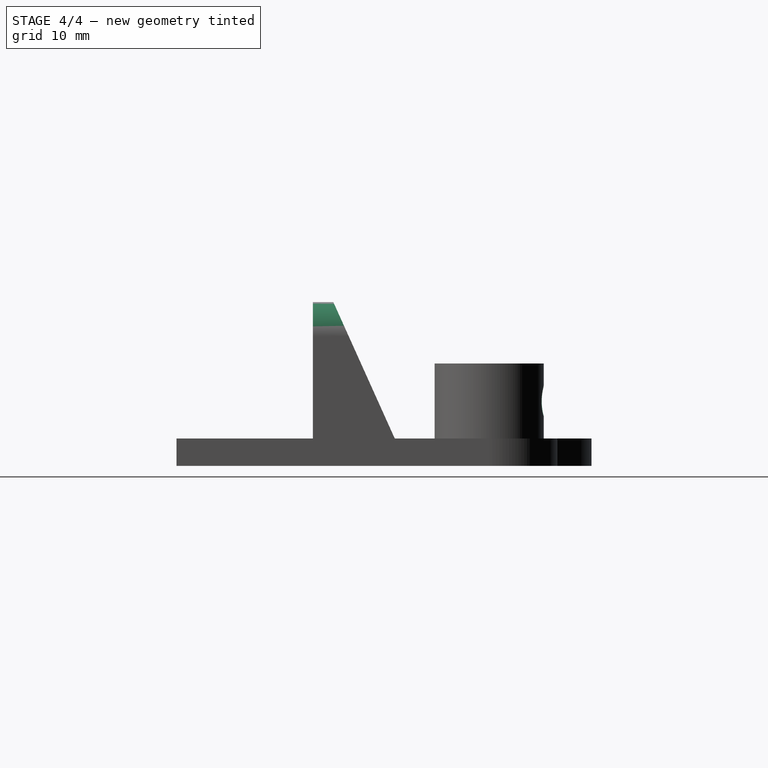
[diagram: stage 4 of 4 — right view after this stage's code; geometry added in this stage tinted green]
FEATURE [Sketcher::SketchObject] Sketch008
  ArcFitTolerance = 1e-06
  AttachmentSupport = -> [Pad003]
  FullyConstrained = true
  MakeInternals = false
  MapMode = 5
  Placement = pos=(0,55.84,0) rot=(0,0.707107,0.707107;3.14159rad)
  sketch-geometry (27):
    g0: LineSegment [constr] StartX=0 StartY=0 StartZ=0 EndX=0 EndY=20 EndZ=0
    g1: LineSegment [constr] StartX=0 StartY=20 StartZ=0 EndX=-85 EndY=20 EndZ=0
    g2: LineSegment [constr] StartX=-85 StartY=20 StartZ=0 EndX=-85 EndY=0 EndZ=0
    g3: LineSegment [constr] StartX=-85 StartY=0 StartZ=0 EndX=0 EndY=0 EndZ=0
    g4: LineSegment [constr] StartX=-85 StartY=0 StartZ=0 EndX=-63.75 EndY=0 EndZ=0
    g5: LineSegment [constr] StartX=-63.75 StartY=0 StartZ=0 EndX=-63.75 EndY=11 EndZ=0
    g6: LineSegment [constr] StartX=-63.75 StartY=11 StartZ=0 EndX=-85 EndY=11 EndZ=0
    g7: LineSegment [constr] StartX=-85 StartY=11 StartZ=0 EndX=-85 EndY=0 EndZ=0
    g8: LineSegment [constr] StartX=-63.75 StartY=11 StartZ=0 EndX=-79.75 EndY=11 EndZ=0
    g9: LineSegment [constr] StartX=-79.75 StartY=11 StartZ=0 EndX=-79.75 EndY=0 EndZ=0
    g10: LineSegment [constr] StartX=-79.75 StartY=0 StartZ=0 EndX=-63.75 EndY=0 EndZ=0
    g11: LineSegment [constr] StartX=-63.75 StartY=0 StartZ=0 EndX=-63.75 EndY=11 EndZ=0
    g12: LineSegment [constr] StartX=0 StartY=0 StartZ=0 EndX=0 EndY=11 EndZ=0
    g13: LineSegment [constr] StartX=0 StartY=11 StartZ=0 EndX=-21.25 EndY=11 EndZ=0
    g14: LineSegment [constr] StartX=-21.25 StartY=11 StartZ=0 EndX=-21.25 EndY=0 EndZ=0
    g15: LineSegment [constr] StartX=-21.25 StartY=0 StartZ=0 EndX=0 EndY=0 EndZ=0
    g16: LineSegment [constr] StartX=-21.25 StartY=11 StartZ=0 EndX=-21.25 EndY=0 EndZ=0
    g17: LineSegment [constr] StartX=-21.25 StartY=0 StartZ=0 EndX=-5.25 EndY=0 EndZ=0
    g18: LineSegment [constr] StartX=-5.25 StartY=0 StartZ=0 EndX=-5.25 EndY=11 EndZ=0
    g19: LineSegment [constr] StartX=-5.25 StartY=11 StartZ=0 EndX=-21.25 EndY=11 EndZ=0
    g20: LineSegment [constr] StartX=-21.25 StartY=11 StartZ=0 EndX=-5.25 EndY=0 EndZ=0
    g21: LineSegment [constr] StartX=-5.25 StartY=11 StartZ=0 EndX=-21.25 EndY=0 EndZ=0
    g22: LineSegment [constr] StartX=-79.75 StartY=11 StartZ=0 EndX=-63.75 EndY=0 EndZ=0
    g23: LineSegment [constr] StartX=-63.75 StartY=11 StartZ=0 EndX=-79.75 EndY=0 EndZ=0
    g24: GeomPoint X=-71.75 Y=5.5 Z=0
    g25: Circle CenterX=-71.75 CenterY=5.5 CenterZ=0 NormalX=0 NormalY=0 NormalZ=1 AngleXU=0 Radius=1
    g26: Circle CenterX=-13.25 CenterY=5.5 CenterZ=0 NormalX=0 NormalY=0 NormalZ=1 AngleXU=0 Radius=1
  constraints (68):
    c: Coincident(g0,g1)
    c: Coincident(g1,g2)
    c: Coincident(g2,g3)
    c: Coincident(g3,g0)
    c: Vertical(g0)
    c: Vertical(g2)
    c: Horizontal(g1)
    c: Horizontal(g3)
    c: Distance(g0,g2) = 85
    c: Distance(g1,g3) = 20
    c: Coincident(g0,g-1)
    c: Coincident(g4,g5)
    c: Coincident(g5,g6)
    c: Coincident(g6,g7)
    c: Coincident(g7,g4)
    c: Horizontal(g4)
    c: Horizontal(g6)
    c: Vertical(g5)
    c: Vertical(g7)
    c: Distance(g5,g7) = 21.25
    c: Distance(g4,g6) = 11
    c: Coincident(g4,g2)
    c: Coincident(g8,g9)
    c: Coincident(g9,g10)
    c: Coincident(g10,g11)
    c: Coincident(g11,g8)
    c: Horizontal(g8)
    c: Horizontal(g10)
    c: Vertical(g9)
    c: Vertical(g11)
    c: Distance(g9,g11) = 16
    c: Coincident(g8,g5)
    c: PointOnObject(g9,g3)
    c: Coincident(g12,g13)
    c: Coincident(g13,g14)
    c: Coincident(g14,g15)
    c: Coincident(g15,g12)
    c: Vertical(g12)
    c: Vertical(g14)
    c: Horizontal(g13)
    c: Horizontal(g15)
    c: Distance(g12,g14) = 21.25
    c: Distance(g13,g15) = 11
    c: Coincident(g12,g0)
    c: Coincident(g16,g17)
    c: Coincident(g17,g18)
    c: Coincident(g18,g19)
    c: Coincident(g19,g16)
    c: Vertical(g16)
    c: Vertical(g18)
    c: Horizontal(g17)
    c: Horizontal(g19)
    c: Distance(g16,g18) = 16
    c: Coincident(g16,g13)
    c: PointOnObject(g17,g3)
    c: Coincident(g20,g13)
    c: Coincident(g20,g17)
    c: Coincident(g21,g18)
    c: Coincident(g21,g14)
    c: Coincident(g22,g8)
    c: Coincident(g22,g4)
    c: Coincident(g23,g5)
    c: Coincident(g23,g9)
    c: Symmetric(g23,g23,g24)
    c: Diameter(g25) = 2
    c: Coincident(g25,g24)
    c: Diameter(g26) = 2
    c: Symmetric(g20,g20,g26)
FEATURE [PartDesign::Hole] Hole002
  BaseFeature = -> Pad003
  CustomThreadClearance = 0
  Depth = 7
  DepthType = 0
  Diameter = 4.5
  DrillForDepth = false
  DrillPoint = 0
  DrillPointAngle = 118
  HoleCutCountersinkAngle = 90
  HoleCutCustomValues = false
  HoleCutDepth = 0
  HoleCutDiameter = 6.1
  HoleCutType = 0
  ModelThread = false
  Profile = -> Sketch008
  Refine = true
  Suppressed = false
  Tapered = false
  TaperedAngle = 90
  ThreadClass = 0
  ThreadDepth = 7
  ThreadDepthType = 0
  ThreadDirection = 0
  ThreadFit = 0
  ThreadSize = 0
  ThreadType = 0
  Threaded = false
  UseCustomThreadClearance = false
FEATURE [PartDesign::Fillet] Fillet
  Base = -> Hole002 [Edge18,Edge3]
  BaseFeature = -> Hole002
  Radius = 5
  Refine = true
  SupportTransform = false
  Suppressed = false
  UseAllEdges = false
FEATURE [PartDesign::Body] Body
  AllowCompound = false
  Group = -> [Sketch,Pad,Sketch001,Pad001,Sketch002,Pad002,Sketch003,SubtractiveLoft,Chamfer,Sketch004,Hole,Sketch005,Sketch006,Pocket,Sketch007,Hole001,Pad003,Sketch008,Hole002,Fillet]
  Origin = -> Origin
  Tip = -> Fillet
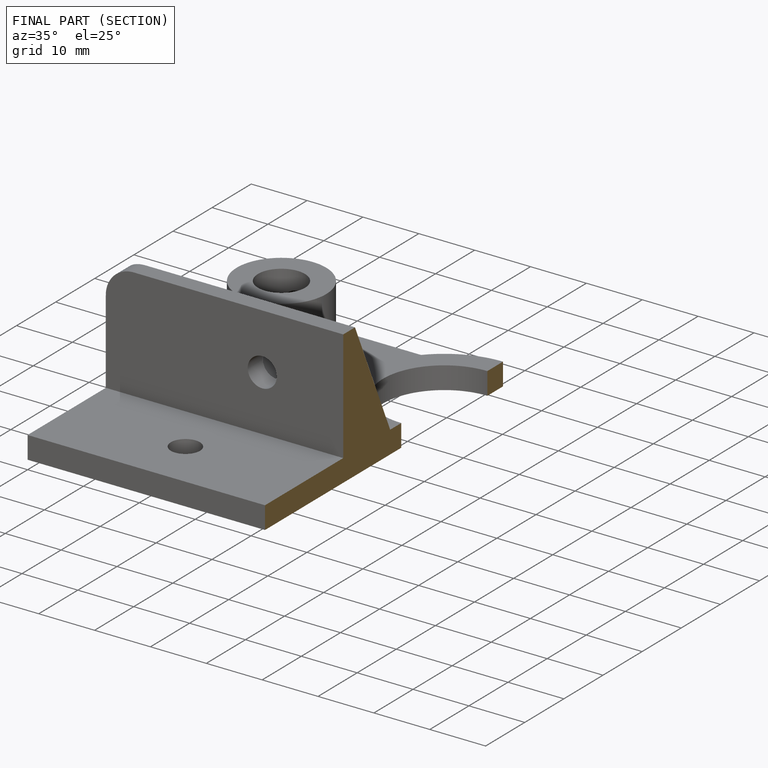
[diagram: finished part — half-section view (interior)]
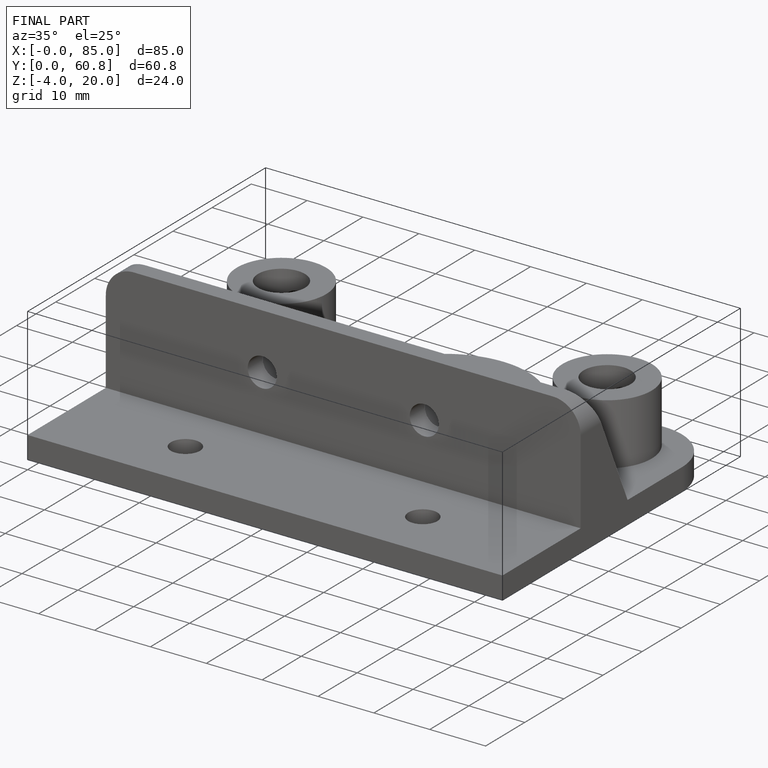
[diagram: finished part — iso view with bounding-box wireframe]
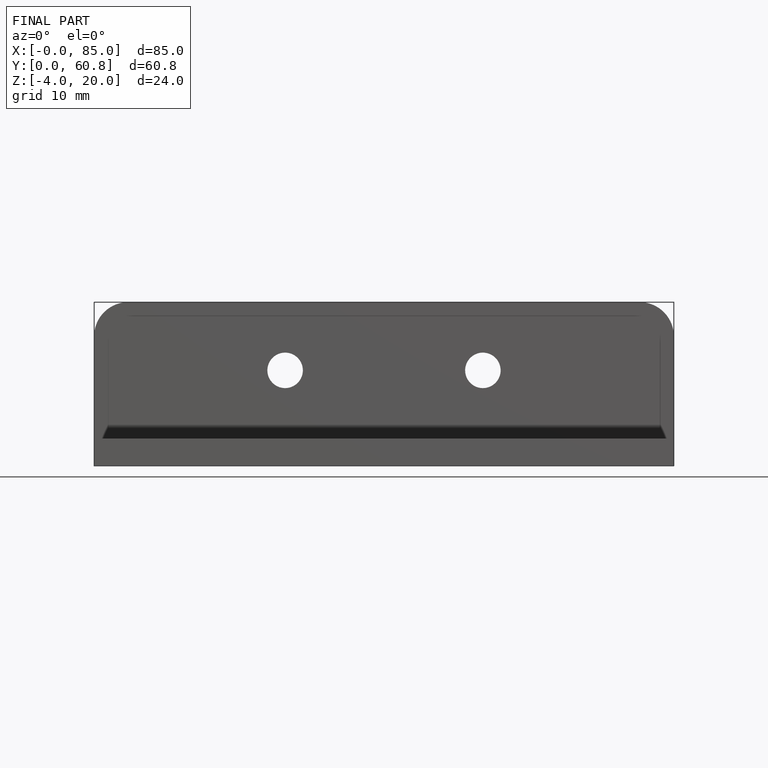
[diagram: finished part — front view with bounding-box wireframe]
